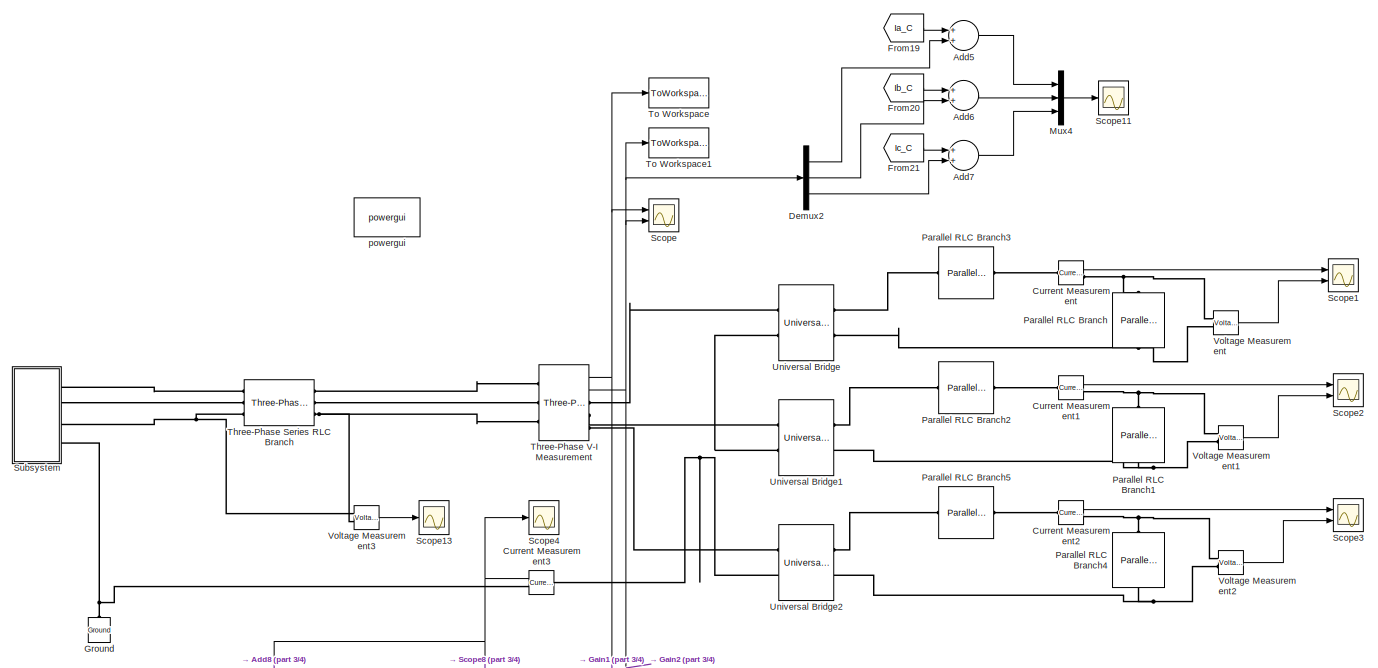
[diagram: root canvas - part 1/4, top left region]
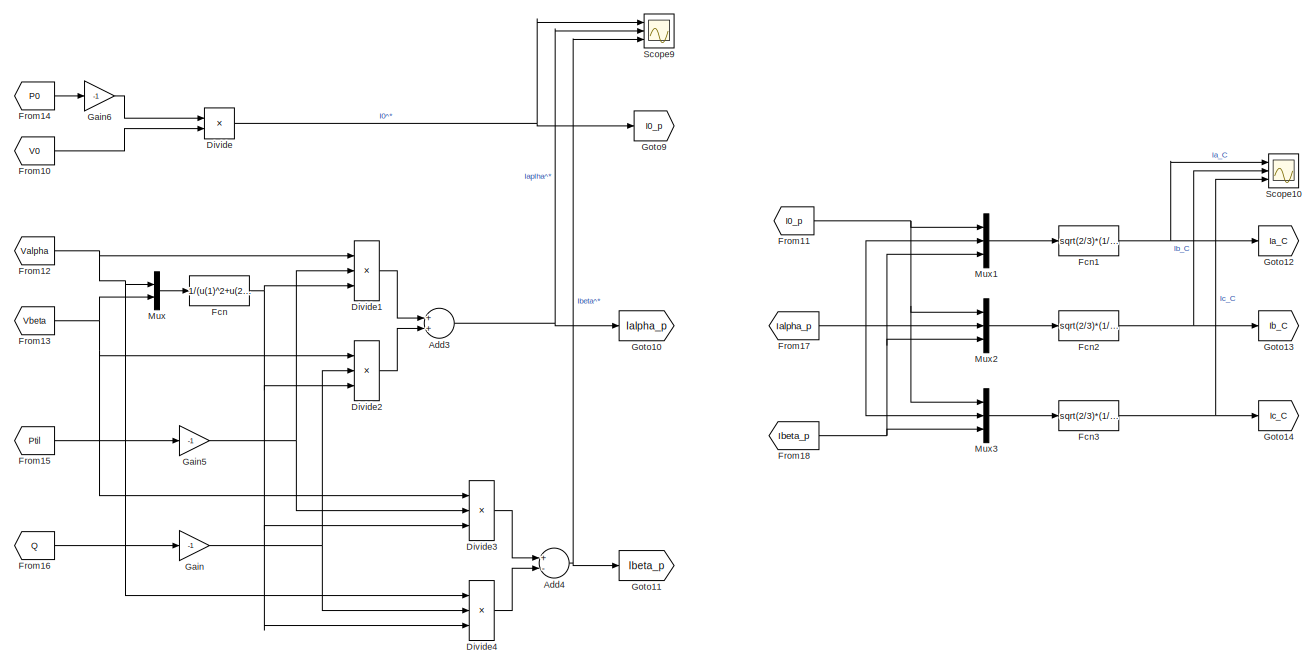
[diagram: root canvas - part 2/4, bottom right region]
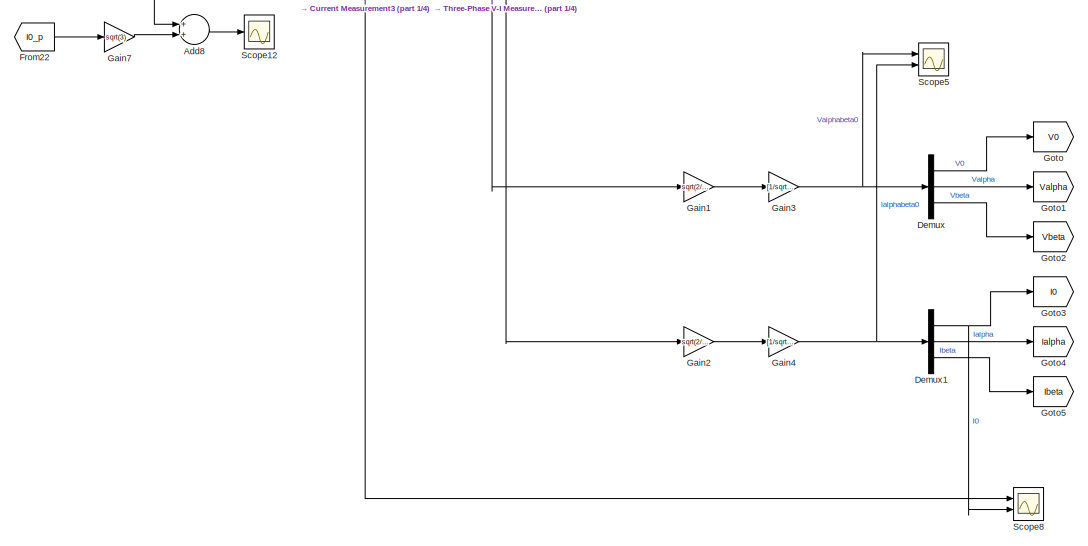
[diagram: root canvas - part 3/4, bottom left region]
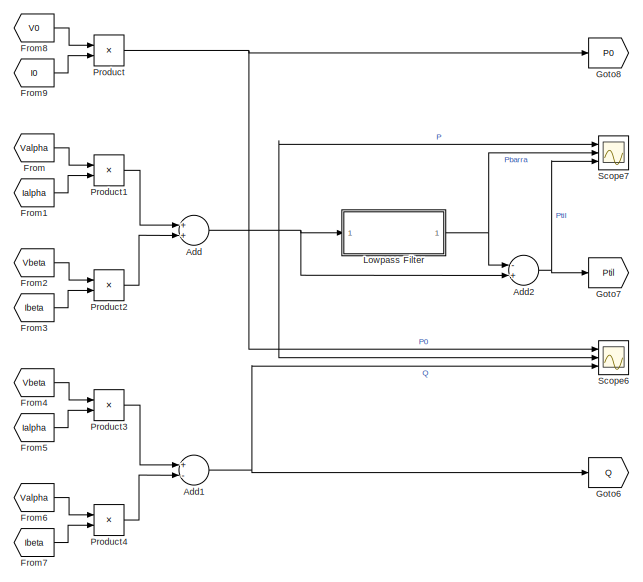
[diagram: root canvas - part 4/4, bottom center region]
MODEL slx_e607e50ff507
KIND model
BLOCK [Sum] Add
  InputSameDT = off
  OutDataTypeStr = Inherit: Inherit via internal rule
  Ports = [2, 1]
  SaturateOnIntegerOverflow = off
BLOCK [Sum] Add1
  InputSameDT = off
  Inputs = +-
  OutDataTypeStr = Inherit: Inherit via internal rule
  Ports = [2, 1]
  SaturateOnIntegerOverflow = off
BLOCK [Sum] Add2
  InputSameDT = off
  Inputs = -+
  OutDataTypeStr = Inherit: Inherit via internal rule
  Ports = [2, 1]
  SaturateOnIntegerOverflow = off
BLOCK [Sum] Add3
  InputSameDT = off
  OutDataTypeStr = Inherit: Inherit via internal rule
  Ports = [2, 1]
  SaturateOnIntegerOverflow = off
BLOCK [Sum] Add4
  InputSameDT = off
  Inputs = +-
  OutDataTypeStr = Inherit: Inherit via internal rule
  Ports = [2, 1]
  SaturateOnIntegerOverflow = off
BLOCK [Sum] Add5
  InputSameDT = off
  OutDataTypeStr = Inherit: Inherit via internal rule
  Ports = [2, 1]
  SaturateOnIntegerOverflow = off
BLOCK [Sum] Add6
  InputSameDT = off
  OutDataTypeStr = Inherit: Inherit via internal rule
  Ports = [2, 1]
  SaturateOnIntegerOverflow = off
BLOCK [Sum] Add7
  InputSameDT = off
  OutDataTypeStr = Inherit: Inherit via internal rule
  Ports = [2, 1]
  SaturateOnIntegerOverflow = off
BLOCK [Sum] Add8
  InputSameDT = off
  OutDataTypeStr = Inherit: Inherit via internal rule
  Ports = [2, 1]
  SaturateOnIntegerOverflow = off
BLOCK [Reference] Current Measurement  REF=powerlib/Measurements/Current Measurement
  OutputType = Complex
  PSBequivalent = 0
  PhasorSimulation = off
  Ports = [0, 1, 0, 0, 0, 1, 1]
  SourceBlock = powerlib/Measurements/Current Measurement
  SourceType = Current Measurement
  UserDataPersistent = on
BLOCK [Reference] Current Measurement1  REF=powerlib/Measurements/Current Measurement
  OutputType = Complex
  PSBequivalent = 0
  PhasorSimulation = off
  Ports = [0, 1, 0, 0, 0, 1, 1]
  SourceBlock = powerlib/Measurements/Current Measurement
  SourceType = Current Measurement
  UserDataPersistent = on
BLOCK [Reference] Current Measurement2  REF=powerlib/Measurements/Current Measurement
  OutputType = Complex
  PSBequivalent = 0
  PhasorSimulation = off
  Ports = [0, 1, 0, 0, 0, 1, 1]
  SourceBlock = powerlib/Measurements/Current Measurement
  SourceType = Current Measurement
  UserDataPersistent = on
BLOCK [Reference] Current Measurement3  REF=powerlib/Measurements/Current Measurement
  OutputType = Complex
  PSBequivalent = 0
  PhasorSimulation = off
  Ports = [0, 1, 0, 0, 0, 1, 1]
  SourceBlock = powerlib/Measurements/Current Measurement
  SourceType = Current Measurement
  UserDataPersistent = on
BLOCK [Demux] Demux
  DisplayOption = bar
  Outputs = 3
  Ports = [1, 3]
BLOCK [Demux] Demux1
  DisplayOption = bar
  Outputs = 3
  Ports = [1, 3]
BLOCK [Demux] Demux2
  DisplayOption = bar
  Outputs = 3
  Ports = [1, 3]
BLOCK [Product] Divide
  InputSameDT = off
  Inputs = */
  OutDataTypeStr = Inherit: Inherit via internal rule
  Ports = [2, 1]
  RndMeth = Floor
  SaturateOnIntegerOverflow = off
BLOCK [Product] Divide1
  InputSameDT = off
  Inputs = ***
  OutDataTypeStr = Inherit: Inherit via internal rule
  Ports = [3, 1]
  RndMeth = Floor
  SaturateOnIntegerOverflow = off
BLOCK [Product] Divide2
  InputSameDT = off
  Inputs = ***
  OutDataTypeStr = Inherit: Inherit via internal rule
  Ports = [3, 1]
  RndMeth = Floor
  SaturateOnIntegerOverflow = off
BLOCK [Product] Divide3
  InputSameDT = off
  Inputs = ***
  OutDataTypeStr = Inherit: Inherit via internal rule
  Ports = [3, 1]
  RndMeth = Floor
  SaturateOnIntegerOverflow = off
BLOCK [Product] Divide4
  InputSameDT = off
  Inputs = ***
  OutDataTypeStr = Inherit: Inherit via internal rule
  Ports = [3, 1]
  RndMeth = Floor
  SaturateOnIntegerOverflow = off
BLOCK [Fcn] Fcn
  Expr = 1/(u(1)^2+u(2)^2)
BLOCK [Fcn] Fcn1
  Expr = sqrt(2/3)*(1/sqrt(2)*u(1)+u(2))
BLOCK [Fcn] Fcn2
  Expr = sqrt(2/3)*(1/sqrt(2)*u(1)-1/2*u(2)+sqrt(3)/2*u(3))
BLOCK [Fcn] Fcn3
  Expr = sqrt(2/3)*(1/sqrt(2)*u(1)-1/2*u(2)-sqrt(3)/2*u(3))
BLOCK [From] From
  GotoTag = Valpha
BLOCK [From] From1
  GotoTag = Ialpha
BLOCK [From] From10
  GotoTag = V0
BLOCK [From] From11
  GotoTag = I0_p
BLOCK [From] From12
  GotoTag = Valpha
BLOCK [From] From13
  GotoTag = Vbeta
BLOCK [From] From14
  GotoTag = P0
BLOCK [From] From15
  GotoTag = Ptil
BLOCK [From] From16
  GotoTag = Q
BLOCK [From] From17
  GotoTag = Ialpha_p
BLOCK [From] From18
  GotoTag = Ibeta_p
BLOCK [From] From19
  GotoTag = Ia_C
BLOCK [From] From2
  GotoTag = Vbeta
BLOCK [From] From20
  GotoTag = Ib_C
BLOCK [From] From21
  GotoTag = Ic_C
BLOCK [From] From22
  GotoTag = I0_p
BLOCK [From] From3
  GotoTag = Ibeta
BLOCK [From] From4
  GotoTag = Vbeta
BLOCK [From] From5
  GotoTag = Ialpha
BLOCK [From] From6
  GotoTag = Valpha
BLOCK [From] From7
  GotoTag = Ibeta
BLOCK [From] From8
  GotoTag = V0
BLOCK [From] From9
  GotoTag = I0
BLOCK [Gain] Gain
  Gain = -1
  OutDataTypeStr = Inherit: Inherit via internal rule
  ParamDataTypeStr = Inherit: Inherit via internal rule
  SaturateOnIntegerOverflow = off
BLOCK [Gain] Gain1
  Gain = sqrt(2/3)
  OutDataTypeStr = Inherit: Inherit via internal rule
  ParamDataTypeStr = Inherit: Inherit via internal rule
  SaturateOnIntegerOverflow = off
BLOCK [Gain] Gain2
  Gain = sqrt(2/3)
  OutDataTypeStr = Inherit: Inherit via internal rule
  ParamDataTypeStr = Inherit: Inherit via internal rule
  SaturateOnIntegerOverflow = off
BLOCK [Gain] Gain3
  Gain = [1/sqrt(2), 1/sqrt(2), 1/sqrt(2); 1, -1/2, -1/2; 0, sqrt(3)/2, -sqrt(3)/2]
  Multiplication = Matrix(K*u)
  OutDataTypeStr = Inherit: Inherit via internal rule
  ParamDataTypeStr = Inherit: Inherit via internal rule
  SaturateOnIntegerOverflow = off
BLOCK [Gain] Gain4
  Gain = [1/sqrt(2), 1/sqrt(2), 1/sqrt(2); 1, -1/2, -1/2; 0, sqrt(3)/2, -sqrt(3)/2]
  Multiplication = Matrix(K*u)
  OutDataTypeStr = Inherit: Inherit via internal rule
  ParamDataTypeStr = Inherit: Inherit via internal rule
  SaturateOnIntegerOverflow = off
BLOCK [Gain] Gain5
  Gain = -1
  OutDataTypeStr = Inherit: Inherit via internal rule
  ParamDataTypeStr = Inherit: Inherit via internal rule
  SaturateOnIntegerOverflow = off
BLOCK [Gain] Gain6
  Gain = -1
  OutDataTypeStr = Inherit: Inherit via internal rule
  ParamDataTypeStr = Inherit: Inherit via internal rule
  SaturateOnIntegerOverflow = off
BLOCK [Gain] Gain7
  Gain = sqrt(3)
  OutDataTypeStr = Inherit: Inherit via internal rule
  ParamDataTypeStr = Inherit: Inherit via internal rule
  SaturateOnIntegerOverflow = off
BLOCK [Goto] Goto
  GotoTag = V0
BLOCK [Goto] Goto1
  GotoTag = Valpha
BLOCK [Goto] Goto10
  GotoTag = Ialpha_p
BLOCK [Goto] Goto11
  GotoTag = Ibeta_p
BLOCK [Goto] Goto12
  GotoTag = Ia_C
BLOCK [Goto] Goto13
  GotoTag = Ib_C
BLOCK [Goto] Goto14
  GotoTag = Ic_C
BLOCK [Goto] Goto2
  GotoTag = Vbeta
BLOCK [Goto] Goto3
  GotoTag = I0
BLOCK [Goto] Goto4
  GotoTag = Ialpha
BLOCK [Goto] Goto5
  GotoTag = Ibeta
BLOCK [Goto] Goto6
  GotoTag = Q
BLOCK [Goto] Goto7
  GotoTag = Ptil
BLOCK [Goto] Goto8
  GotoTag = P0
BLOCK [Goto] Goto9
  GotoTag = I0_p
BLOCK [Reference] Ground  REF=powerlib/Elements/Ground
  LConnTagsString = a
  Ports = [0, 0, 0, 0, 0, 1]
  SourceBlock = powerlib/Elements/Ground
  SourceType = Ground
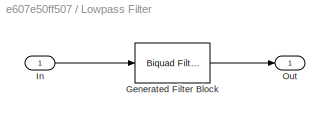
BLOCK [SubSystem] Lowpass Filter
  CopyFcn = fdesignblkfcn(gcbh, {'CopyFcn'});
  DialogController = fdesignblkfcn
  InitFcn = fdesignblkfcn(gcbh, {'InitFcn'});
  Ports = [1, 1]
  RequestExecContextInheritance = off
  UserDataPersistent = on
BLOCK [Reference] Lowpass Filter/Generated Filter Block  REF=dsparch4/Biquad Filter
  BiQuadCoeffs = [1.9581181503870373e-08 3.9162363007740746e-08 1.9581181503870373e-08 1 -1.999872600061211 0.99987271195891581;0.24151271759227033 0.48302543518454066 0.24151271759227033 1 -1.9996926850262837 0.99969272713599988]
  CoeffSource = Specify via dialog
  FilterSource = Specify via dialog
  IC = 0
  ICden = 0
  ICnum = 0
  IIRFiltStruct = Direct form II
  InputProcessing = Columns as channels (frame based)
  LockScale = off
  Ports = [1, 1]
  ScaleValueMode = Specify via input port (g)
  ScaleValues = [6.0159553970087562e-08;1;1]
  SourceBlock = dsparch4/Biquad Filter
  SourceType = Biquad Filter
  Tag = BlockMethodSubSystem
  UserDataPersistent = on
  a0Flag = Warning
  accumFracLength = 30
  accumMode = Same as product output
  accumWordLength = 32
  allowOverrides = on
  denAccumFracLength = 30
  denProdOutputFracLength = 30
  dfiltObjectName = dfilt.df2tsos([1 0.3 0.4],[1 0.1 0.2])
  firstCoeffFracLength = 15
  firstCoeffMode = Same word length as input
  firstCoeffWordLength = 16
  memoryFracLength = 15
  memoryMode = Same as accumulator
  memoryWordLength = 16
  multiplicandFracLength = 30
  multiplicandMode = Same as output
  multiplicandWordLength = 32
  optimizeScaleValues = off
  outputFracLength = 15
  outputMode = Same as accumulator
  outputWordLength = 16
  overflowMode = off
  prodOutputFracLength = 30
  prodOutputMode = Same as input
  prodOutputWordLength = 32
  roundingMode = Floor
  scaleValueFracLength = 14
  secondCoeffFracLength = 15
  secondCoeffMode = Same as numerator
  secondCoeffWordLength = 16
  secondMemoryFracLength = 15
  stageInputFracLength = 15
  stageInputMode = Same as input
  stageInputWordLength = 16
  stageOutputFracLength = 15
  stageOutputMode = Same as section input
  stageOutputWordLength = 16
BLOCK [Inport] Lowpass Filter/In
  IconDisplay = Port number
BLOCK [Outport] Lowpass Filter/Out
  IconDisplay = Port number
BLOCK [Mux] Mux
  DisplayOption = bar
  Inputs = 2
  Ports = [2, 1]
BLOCK [Mux] Mux1
  DisplayOption = bar
  Inputs = 3
  Ports = [3, 1]
BLOCK [Mux] Mux2
  DisplayOption = bar
  Inputs = 3
  Ports = [3, 1]
BLOCK [Mux] Mux3
  DisplayOption = bar
  Inputs = 3
  Ports = [3, 1]
BLOCK [Mux] Mux4
  DisplayOption = bar
  Inputs = 3
  Ports = [3, 1]
BLOCK [Reference] Parallel RLC Branch  REF=powerlib/Elements/Parallel RLC Branch
  AttributesFormatString = \n
  BranchType = RC
  Capacitance = 30e-6
  Inductance = 1e-3
  InitialCurrent = 0
  InitialVoltage = 0
  LConnTagsString = a
  Measurements = None
  Ports = [0, 0, 0, 0, 0, 1, 1]
  RConnTagsString = __new0
  Resistance = 50
  SetiL0 = off
  Setx0 = off
  SourceBlock = powerlib/Elements/Parallel RLC Branch
  SourceType = Parallel RLC Branch
BLOCK [Reference] Parallel RLC Branch1  REF=powerlib/Elements/Parallel RLC Branch
  AttributesFormatString = \n
  BranchType = RC
  Capacitance = 30e-6
  Inductance = 1e-3
  InitialCurrent = 0
  InitialVoltage = 0
  LConnTagsString = a
  Measurements = None
  Ports = [0, 0, 0, 0, 0, 1, 1]
  RConnTagsString = __new0
  Resistance = 5
  SetiL0 = off
  Setx0 = off
  SourceBlock = powerlib/Elements/Parallel RLC Branch
  SourceType = Parallel RLC Branch
BLOCK [Reference] Parallel RLC Branch2  REF=powerlib/Elements/Parallel RLC Branch
  AttributesFormatString = \n
  BranchType = L
  Capacitance = 30e-6
  Inductance = 20e-3
  InitialCurrent = 0
  InitialVoltage = 0
  LConnTagsString = a
  Measurements = None
  Ports = [0, 0, 0, 0, 0, 1, 1]
  RConnTagsString = __new0
  Resistance = 1
  SetiL0 = off
  Setx0 = off
  SourceBlock = powerlib/Elements/Parallel RLC Branch
  SourceType = Parallel RLC Branch
BLOCK [Reference] Parallel RLC Branch3  REF=powerlib/Elements/Parallel RLC Branch
  AttributesFormatString = \n
  BranchType = L
  Capacitance = 30e-6
  Inductance = 10e-3
  InitialCurrent = 0
  InitialVoltage = 0
  LConnTagsString = a
  Measurements = None
  Ports = [0, 0, 0, 0, 0, 1, 1]
  RConnTagsString = __new0
  Resistance = 1
  SetiL0 = off
  Setx0 = off
  SourceBlock = powerlib/Elements/Parallel RLC Branch
  SourceType = Parallel RLC Branch
BLOCK [Reference] Parallel RLC Branch4  REF=powerlib/Elements/Parallel RLC Branch
  AttributesFormatString = \n
  BranchType = RC
  Capacitance = 30e-6
  Inductance = 1e-3
  InitialCurrent = 0
  InitialVoltage = 0
  LConnTagsString = a
  Measurements = None
  Ports = [0, 0, 0, 0, 0, 1, 1]
  RConnTagsString = __new0
  Resistance = 500
  SetiL0 = off
  Setx0 = off
  SourceBlock = powerlib/Elements/Parallel RLC Branch
  SourceType = Parallel RLC Branch
BLOCK [Reference] Parallel RLC Branch5  REF=powerlib/Elements/Parallel RLC Branch
  AttributesFormatString = \n
  BranchType = L
  Capacitance = 30e-6
  Inductance = 20e-3
  InitialCurrent = 0
  InitialVoltage = 0
  LConnTagsString = a
  Measurements = None
  Ports = [0, 0, 0, 0, 0, 1, 1]
  RConnTagsString = __new0
  Resistance = 1
  SetiL0 = off
  Setx0 = off
  SourceBlock = powerlib/Elements/Parallel RLC Branch
  SourceType = Parallel RLC Branch
BLOCK [Product] Product
  InputSameDT = off
  OutDataTypeStr = Inherit: Inherit via internal rule
  Ports = [2, 1]
  RndMeth = Floor
  SaturateOnIntegerOverflow = off
BLOCK [Product] Product1
  InputSameDT = off
  OutDataTypeStr = Inherit: Inherit via internal rule
  Ports = [2, 1]
  RndMeth = Floor
  SaturateOnIntegerOverflow = off
BLOCK [Product] Product2
  InputSameDT = off
  OutDataTypeStr = Inherit: Inherit via internal rule
  Ports = [2, 1]
  RndMeth = Floor
  SaturateOnIntegerOverflow = off
BLOCK [Product] Product3
  InputSameDT = off
  OutDataTypeStr = Inherit: Inherit via internal rule
  Ports = [2, 1]
  RndMeth = Floor
  SaturateOnIntegerOverflow = off
BLOCK [Product] Product4
  InputSameDT = off
  OutDataTypeStr = Inherit: Inherit via internal rule
  Ports = [2, 1]
  RndMeth = Floor
  SaturateOnIntegerOverflow = off
BLOCK [Scope] Scope
  Floating = off
  LimitDataPoints = off
  NumInputPorts = 2
  Ports = [2]
  ShowLegends = off
  YMax = 250~17.5
  YMin = -250~-17.5
  ZoomMode = xonly
BLOCK [Scope] Scope1
  Floating = off
  LimitDataPoints = off
  NumInputPorts = 2
  Ports = [2]
  SaveName = ScopeData1
  ShowLegends = off
  YMax = 20~200
  YMin = -0.00169333~0
  ZoomMode = xonly
BLOCK [Scope] Scope10
  Floating = off
  LimitDataPoints = off
  NumInputPorts = 3
  Ports = [3]
  SaveName = ScopeData10
  ShowLegends = off
  YMax = 400~200~5
  YMin = -600~-200~-5
  ZoomMode = xonly
BLOCK [Scope] Scope11
  Floating = off
  LimitDataPoints = off
  NumInputPorts = 1
  Ports = [1]
  SaveName = ScopeData11
  ShowLegends = off
  YMax = 10
  YMin = -9
  ZoomMode = xonly
BLOCK [Scope] Scope12
  Floating = off
  LimitDataPoints = off
  NumInputPorts = 1
  Ports = [1]
  SaveName = ScopeData12
  ShowLegends = off
  YMax = 7.5
  YMin = -7.5
  ZoomMode = xonly
BLOCK [Scope] Scope13
  Floating = off
  LimitDataPoints = off
  NumInputPorts = 1
  Ports = [1]
  SaveName = ScopeData13
  ShowLegends = off
  YMax = 27.5
  YMin = -25
  ZoomMode = xonly
BLOCK [Scope] Scope2
  Floating = off
  LimitDataPoints = off
  NumInputPorts = 2
  Ports = [2]
  SaveName = ScopeData2
  ShowLegends = off
  YMax = 20~200
  YMin = -0.00169333~0
  ZoomMode = xonly
BLOCK [Scope] Scope3
  Floating = off
  LimitDataPoints = off
  NumInputPorts = 2
  Ports = [2]
  SaveName = ScopeData3
  ShowLegends = off
  YMax = 20~200
  YMin = -0.00169333~0
  ZoomMode = xonly
BLOCK [Scope] Scope4
  Floating = off
  LimitDataPoints = off
  NumInputPorts = 1
  Ports = [1]
  SaveName = ScopeData4
  ShowLegends = off
  YMax = 27.5
  YMin = -25
  ZoomMode = yonly
BLOCK [Scope] Scope5
  Floating = off
  LimitDataPoints = off
  NumInputPorts = 2
  Ports = [2]
  SaveName = ScopeData5
  ShowLegends = off
  YMax = 400~200
  YMin = -600~-200
  ZoomMode = xonly
BLOCK [Scope] Scope6
  Floating = off
  LimitDataPoints = off
  NumInputPorts = 3
  Ports = [3]
  SaveName = ScopeData6
  ShowLegends = off
  YMax = 400~200~5
  YMin = -600~-200~-5
  ZoomMode = yonly
BLOCK [Scope] Scope7
  Floating = off
  LimitDataPoints = off
  NumInputPorts = 3
  Ports = [3]
  SaveName = ScopeData7
  ShowLegends = off
  YMax = 105000~5000~105000
  YMin = 0~0~-5000
  ZoomMode = yonly
BLOCK [Scope] Scope8
  Floating = off
  LimitDataPoints = off
  NumInputPorts = 2
  Ports = [2]
  SaveName = ScopeData8
  ShowLegends = off
  YMax = 400~200
  YMin = -600~-200
  ZoomMode = yonly
BLOCK [Scope] Scope9
  Floating = off
  LimitDataPoints = off
  NumInputPorts = 3
  Ports = [3]
  SaveName = ScopeData9
  ShowLegends = off
  YMax = 8~2e+12~1.75e+15
  YMin = -8~-1e+12~-2.5e+14
  ZoomMode = xonly
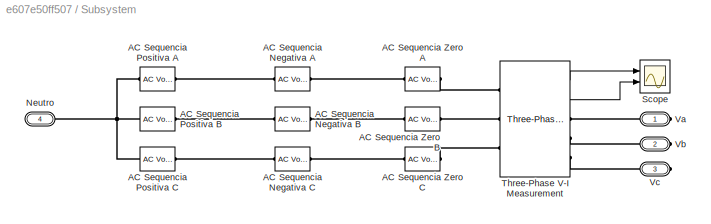
BLOCK [SubSystem] Subsystem
  Ports = [0, 0, 0, 0, 0, 0, 4]
  RequestExecContextInheritance = off
BLOCK [Reference] Subsystem/AC Sequencia Negativa A  REF=powerlib/Electrical
Sources/AC Voltage Source
  Amplitude = Vn
  Frequency = f
  Measurements = None
  Phase = 0+phin
  Ports = [0, 0, 0, 0, 0, 1, 1]
  SampleTime = 0
  SourceBlock = powerlib/Electrical\nSources/AC Voltage Source
  SourceType = AC Voltage Source
BLOCK [Reference] Subsystem/AC Sequencia Negativa B  REF=powerlib/Electrical
Sources/AC Voltage Source
  Amplitude = Vn
  Frequency = f
  Measurements = None
  Phase = 120+phin
  Ports = [0, 0, 0, 0, 0, 1, 1]
  SampleTime = 0
  SourceBlock = powerlib/Electrical\nSources/AC Voltage Source
  SourceType = AC Voltage Source
BLOCK [Reference] Subsystem/AC Sequencia Negativa C  REF=powerlib/Electrical
Sources/AC Voltage Source
  Amplitude = Vn
  Frequency = f
  Measurements = None
  Phase = -120+phin
  Ports = [0, 0, 0, 0, 0, 1, 1]
  SampleTime = 0
  SourceBlock = powerlib/Electrical\nSources/AC Voltage Source
  SourceType = AC Voltage Source
BLOCK [Reference] Subsystem/AC Sequencia Positiva A  REF=powerlib/Electrical
Sources/AC Voltage Source
  Amplitude = Vp
  Frequency = f
  Measurements = None
  Phase = 0
  Ports = [0, 0, 0, 0, 0, 1, 1]
  SampleTime = 0
  SourceBlock = powerlib/Electrical\nSources/AC Voltage Source
  SourceType = AC Voltage Source
BLOCK [Reference] Subsystem/AC Sequencia Positiva B  REF=powerlib/Electrical
Sources/AC Voltage Source
  Amplitude = Vp
  Frequency = f
  Measurements = None
  Phase = -120
  Ports = [0, 0, 0, 0, 0, 1, 1]
  SampleTime = 0
  SourceBlock = powerlib/Electrical\nSources/AC Voltage Source
  SourceType = AC Voltage Source
BLOCK [Reference] Subsystem/AC Sequencia Positiva C  REF=powerlib/Electrical
Sources/AC Voltage Source
  Amplitude = Vp
  Frequency = f
  Measurements = None
  Phase = +120
  Ports = [0, 0, 0, 0, 0, 1, 1]
  SampleTime = 0
  SourceBlock = powerlib/Electrical\nSources/AC Voltage Source
  SourceType = AC Voltage Source
BLOCK [Reference] Subsystem/AC Sequencia Zero A  REF=powerlib/Electrical
Sources/AC Voltage Source
  Amplitude = Vz
  Frequency = f
  Measurements = None
  Phase = 0+phi0
  Ports = [0, 0, 0, 0, 0, 1, 1]
  SampleTime = 0
  SourceBlock = powerlib/Electrical\nSources/AC Voltage Source
  SourceType = AC Voltage Source
BLOCK [Reference] Subsystem/AC Sequencia Zero B  REF=powerlib/Electrical
Sources/AC Voltage Source
  Amplitude = Vz
  Frequency = f
  Measurements = None
  Phase = 0+phi0
  Ports = [0, 0, 0, 0, 0, 1, 1]
  SampleTime = 0
  SourceBlock = powerlib/Electrical\nSources/AC Voltage Source
  SourceType = AC Voltage Source
BLOCK [Reference] Subsystem/AC Sequencia Zero C  REF=powerlib/Electrical
Sources/AC Voltage Source
  Amplitude = Vz
  Frequency = f
  Measurements = None
  Phase = 0+phi0
  Ports = [0, 0, 0, 0, 0, 1, 1]
  SampleTime = 0
  SourceBlock = powerlib/Electrical\nSources/AC Voltage Source
  SourceType = AC Voltage Source
BLOCK [PMIOPort] Subsystem/Neutro
  Port = 4
  Side = Right
BLOCK [Scope] Subsystem/Scope
  Floating = off
  LimitDataPoints = off
  NumInputPorts = 2
  Ports = [2]
  SaveName = ScopeData14
  ShowLegends = off
  YMax = 6~0.8
  YMin = -6~-0.8
  ZoomMode = xonly
BLOCK [Reference] Subsystem/Three-Phase V-I Measurement  REF=powerlib/Measurements/Three-Phase
V-I Measurement
  CurrentMeasurement = yes
  Ipu = off
  LabelI = Iabc
  LabelV = Vabc
  OutputType = Complex
  PSBequivalent = 0
  Pbase = 100e6
  PhasorSimulation = off
  Ports = [0, 2, 0, 0, 0, 3, 3]
  SetLabelI = off
  SetLabelV = off
  SourceBlock = powerlib/Measurements/Three-Phase\nV-I Measurement
  SourceType = Three-Phase VI Measurement
  Vbase = 500e3
  VoltageMeasurement = phase-to-ground
  Vpu = off
  VpuLL = off
BLOCK [PMIOPort] Subsystem/Va
  Port = 1
  Side = Right
BLOCK [PMIOPort] Subsystem/Vb
  Port = 2
  Side = Right
BLOCK [PMIOPort] Subsystem/Vc
  Port = 3
  Side = Right
BLOCK [Reference] Three-Phase Series RLC Branch  REF=powerlib/Elements/Three-Phase
Series RLC Branch
  AttributesFormatString = \n
  BranchType = RL
  Capacitance = 1e-6
  Inductance = eps
  LConnTagsString = A|B|C
  Measurements = None
  Ports = [0, 0, 0, 0, 0, 3, 3]
  RConnTagsString = A|B|C
  Resistance = eps
  SourceBlock = powerlib/Elements/Three-Phase\nSeries RLC Branch
  SourceType = Three-Phase Series RLC Branch
BLOCK [Reference] Three-Phase V-I Measurement  REF=powerlib/Measurements/Three-Phase
V-I Measurement
  CurrentMeasurement = yes
  Ipu = off
  LabelI = Iabc
  LabelV = Vabc
  OutputType = Complex
  PSBequivalent = 0
  Pbase = 100e6
  PhasorSimulation = off
  Ports = [0, 2, 0, 0, 0, 3, 3]
  SetLabelI = off
  SetLabelV = off
  SourceBlock = powerlib/Measurements/Three-Phase\nV-I Measurement
  SourceType = Three-Phase VI Measurement
  Vbase = 500e3
  VoltageMeasurement = phase-to-ground
  Vpu = off
  VpuLL = off
BLOCK [ToWorkspace] To Workspace
  FixptAsFi = on
  MaxDataPoints = inf
  Ports = [1]
  SampleTime = -1
  Save2DSignal = 3-D array (concatenate along third dimension)
  SaveFormat = Structure With Time
  VariableName = Vabc
BLOCK [ToWorkspace] To Workspace1
  FixptAsFi = on
  MaxDataPoints = inf
  Ports = [1]
  SampleTime = -1
  Save2DSignal = 3-D array (concatenate along third dimension)
  SaveFormat = Structure With Time
  VariableName = Iabc
BLOCK [Reference] Universal Bridge  REF=powerlib/Power
Electronics/Universal Bridge
  Arms = 2
  Device = Diodes
  ForwardVoltage = 0
  ForwardVoltages = [  0  0  ]
  GTOparameters = [ 10e-6 , 20e-6 ]
  IGBTparameters = [ 1e-6 , 2e-6 ]
  Lon = 0
  Measurements = None
  Measurements_2 = None
  Ports = [0, 0, 0, 0, 0, 2, 2]
  Ron = 1e-3
  SnubberCapacitance = inf
  SnubberResistance = 1e5
  SourceBlock = powerlib/Power\nElectronics/Universal Bridge
  SourceType = Universal Bridge
  converterType = Rectifier
BLOCK [Reference] Universal Bridge1  REF=powerlib/Power
Electronics/Universal Bridge
  Arms = 2
  Device = Diodes
  ForwardVoltage = 0
  ForwardVoltages = [  0  0  ]
  GTOparameters = [ 10e-6 , 20e-6 ]
  IGBTparameters = [ 1e-6 , 2e-6 ]
  Lon = 0
  Measurements = None
  Measurements_2 = None
  Ports = [0, 0, 0, 0, 0, 2, 2]
  Ron = 1e-3
  SnubberCapacitance = inf
  SnubberResistance = 1e5
  SourceBlock = powerlib/Power\nElectronics/Universal Bridge
  SourceType = Universal Bridge
  converterType = Rectifier
BLOCK [Reference] Universal Bridge2  REF=powerlib/Power
Electronics/Universal Bridge
  Arms = 2
  Device = Diodes
  ForwardVoltage = 0
  ForwardVoltages = [  0  0  ]
  GTOparameters = [ 10e-6 , 20e-6 ]
  IGBTparameters = [ 1e-6 , 2e-6 ]
  Lon = 0
  Measurements = None
  Measurements_2 = None
  Ports = [0, 0, 0, 0, 0, 2, 2]
  Ron = 1e-3
  SnubberCapacitance = inf
  SnubberResistance = 1e5
  SourceBlock = powerlib/Power\nElectronics/Universal Bridge
  SourceType = Universal Bridge
  converterType = Rectifier
BLOCK [Reference] Voltage Measurement  REF=powerlib/Measurements/Voltage Measurement
  OutputType = Complex
  PSBequivalent = 0
  PhasorSimulation = off
  Ports = [0, 1, 0, 0, 0, 2]
  SourceBlock = powerlib/Measurements/Voltage Measurement
  SourceType = Voltage Measurement
  UserDataPersistent = on
BLOCK [Reference] Voltage Measurement1  REF=powerlib/Measurements/Voltage Measurement
  OutputType = Complex
  PSBequivalent = 0
  PhasorSimulation = off
  Ports = [0, 1, 0, 0, 0, 2]
  SourceBlock = powerlib/Measurements/Voltage Measurement
  SourceType = Voltage Measurement
  UserDataPersistent = on
BLOCK [Reference] Voltage Measurement2  REF=powerlib/Measurements/Voltage Measurement
  OutputType = Complex
  PSBequivalent = 0
  PhasorSimulation = off
  Ports = [0, 1, 0, 0, 0, 2]
  SourceBlock = powerlib/Measurements/Voltage Measurement
  SourceType = Voltage Measurement
  UserDataPersistent = on
BLOCK [Reference] Voltage Measurement3  REF=powerlib/Measurements/Voltage Measurement
  OutputType = Complex
  PSBequivalent = 0
  PhasorSimulation = off
  Ports = [0, 1, 0, 0, 0, 2]
  SourceBlock = powerlib/Measurements/Voltage Measurement
  SourceType = Voltage Measurement
  UserDataPersistent = on
BLOCK [Reference] powergui  REF=powerlib/powergui
  DisableRonSwitches = off
  DisableSnubberDevices = off
  DisableVfSwitches = off
  DisplayEquations = off
  DisplayStyle = 1
  EnableUseOfTLC = off
  ErrMax = 1e-4
  Frange = [0:2:500]
  FreqAxis = off
  FunctionMessages = off
  HookPort = off
  Interpol = off
  Iterations = 50
  MaxFrequency = 1000
  Pbase = 100e6
  Ports = []
  Priority = 1
  ResistiveCurrentMeasurement = off
  RestoreLinks = warning
  RmsSteady = 1
  SPID = off
  SampleTime = 5e-7
  ShowGrid = off
  SolverType = Tustin
  SourceBlock = powerlib/powergui
  SourceType = PSB option menu block
  StartTime = 0.0
  SwTol = 0
  Ts = 100
  UnitsV = kV
  UnitsW = MW
  UserDataPersistent = on
  Xlog = on
  Ylog = off
  ZoomFFT = off
  cycles = 1
  display = off
  echomessages = off
  frequency = 60
  frequencyindice = 0
  frequencyindicesteady = 1
  fundamental = 60
  methode = off
  save = off
  structure = 0
  variable = ZData
  x0status = blocks
NET Add1:1 -> Goto6:1, Scope6:3
NET Add2:1 -> Goto7:1, Scope7:3
NET Add3:1 -> Goto10:1, Scope9:2
NET Add4:1 -> Goto11:1, Scope9:3
LINE Add5:1 -> Mux4:1
LINE Add6:1 -> Mux4:2
LINE Add7:1 -> Mux4:3
LINE Add8:1 -> Scope12:1
NET Add:1 -> Add2:2, Lowpass Filter:1, Scope6:2, Scope7:1
LINE Current Measurement1:1 -> Scope2:1
LINE Current Measurement2:1 -> Scope3:1
NET Current Measurement3:1 -> Add8:1, Scope4:1, Scope8:1
LINE Current Measurement:1 -> Scope1:1
NET Demux1:1 -> Goto3:1, Scope8:2
LINE Demux1:2 -> Goto4:1
LINE Demux1:3 -> Goto5:1
LINE Demux2:1 -> Add5:2
LINE Demux2:2 -> Add6:2
LINE Demux2:3 -> Add7:2
LINE Demux:1 -> Goto:1
LINE Demux:2 -> Goto1:1
LINE Demux:3 -> Goto2:1
LINE Divide1:1 -> Add3:1
LINE Divide2:1 -> Add3:2
LINE Divide3:1 -> Add4:1
LINE Divide4:1 -> Add4:2
NET Divide:1 -> Goto9:1, Scope9:1
NET Fcn1:1 -> Goto12:1, Scope10:1
NET Fcn2:1 -> Goto13:1, Scope10:2
NET Fcn3:1 -> Goto14:1, Scope10:3
NET Fcn:1 -> Divide1:3, Divide2:3, Divide3:3, Divide4:3
LINE From10:1 -> Divide:2
NET From11:1 -> Mux1:1, Mux2:1, Mux3:1
NET From12:1 -> Divide1:1, Divide4:1, Mux:1
NET From13:1 -> Divide2:1, Divide3:1, Mux:2
LINE From14:1 -> Gain6:1
LINE From15:1 -> Gain5:1
LINE From16:1 -> Gain:1
NET From17:1 -> Mux1:2, Mux2:2, Mux3:2
NET From18:1 -> Mux1:3, Mux2:3, Mux3:3
LINE From19:1 -> Add5:1
LINE From1:1 -> Product1:2
LINE From20:1 -> Add6:1
LINE From21:1 -> Add7:1
LINE From22:1 -> Gain7:1
LINE From2:1 -> Product2:1
LINE From3:1 -> Product2:2
LINE From4:1 -> Product3:1
LINE From5:1 -> Product3:2
LINE From6:1 -> Product4:1
LINE From7:1 -> Product4:2
LINE From8:1 -> Product:1
LINE From9:1 -> Product:2
LINE From:1 -> Product1:1
LINE Gain1:1 -> Gain3:1
LINE Gain2:1 -> Gain4:1
NET Gain3:1 -> Demux:1, Scope5:1
NET Gain4:1 -> Demux1:1, Scope5:2
NET Gain5:1 -> Divide1:2, Divide3:2
LINE Gain6:1 -> Divide:1
LINE Gain7:1 -> Add8:2
NET Gain:1 -> Divide2:2, Divide4:2
NET Lowpass Filter:1 -> Add2:1, Scope7:2
LINE Mux1:1 -> Fcn1:1
LINE Mux2:1 -> Fcn2:1
LINE Mux3:1 -> Fcn3:1
LINE Mux4:1 -> Scope11:1
LINE Mux:1 -> Fcn:1
LINE Product1:1 -> Add:1
LINE Product2:1 -> Add:2
LINE Product3:1 -> Add1:1
LINE Product4:1 -> Add1:2
NET Product:1 -> Goto8:1, Scope6:1
LINE Subsystem/Three-Phase V-I Measurement:1 -> Subsystem/Scope:1
LINE Subsystem/Three-Phase V-I Measurement:2 -> Subsystem/Scope:2
NET Three-Phase V-I Measurement:1 -> Gain1:1, Scope:1, To Workspace:1
NET Three-Phase V-I Measurement:2 -> Demux2:1, Gain2:1, Scope:2, To Workspace1:1
LINE Voltage Measurement1:1 -> Scope2:2
LINE Voltage Measurement2:1 -> Scope3:2
LINE Voltage Measurement3:1 -> Scope13:1
LINE Voltage Measurement:1 -> Scope1:2
PLINE Current Measurement1:LConn1 -- Parallel RLC Branch2:LConn1
PNET net1: Current Measurement1:RConn1 -- Parallel RLC Branch1:LConn1 -- Voltage Measurement1:LConn1
PLINE Current Measurement2:LConn1 -- Parallel RLC Branch5:LConn1
PNET net2: Current Measurement2:RConn1 -- Parallel RLC Branch4:LConn1 -- Voltage Measurement2:LConn1
PNET net3: Current Measurement3:LConn1 -- Universal Bridge1:LConn2 -- Universal Bridge2:LConn2 -- Universal Bridge:LConn2
PNET net4: Current Measurement3:RConn1 -- Ground:LConn1 -- Subsystem:RConn4
PLINE Current Measurement:LConn1 -- Parallel RLC Branch3:LConn1
PNET net5: Current Measurement:RConn1 -- Parallel RLC Branch:LConn1 -- Voltage Measurement:LConn1
PNET net6: Parallel RLC Branch1:RConn1 -- Universal Bridge1:RConn2 -- Voltage Measurement1:LConn2
PLINE Parallel RLC Branch2:RConn1 -- Universal Bridge1:RConn1
PLINE Parallel RLC Branch3:RConn1 -- Universal Bridge:RConn1
PNET net7: Parallel RLC Branch4:RConn1 -- Universal Bridge2:RConn2 -- Voltage Measurement2:LConn2
PLINE Parallel RLC Branch5:RConn1 -- Universal Bridge2:RConn1
PNET net8: Parallel RLC Branch:RConn1 -- Universal Bridge:RConn2 -- Voltage Measurement:LConn2
PLINE Subsystem/AC Sequencia Negativa A:LConn1 -- Subsystem/AC Sequencia Positiva A:RConn1
PLINE Subsystem/AC Sequencia Negativa A:RConn1 -- Subsystem/AC Sequencia Zero A:LConn1
PLINE Subsystem/AC Sequencia Negativa B:LConn1 -- Subsystem/AC Sequencia Positiva B:RConn1
PLINE Subsystem/AC Sequencia Negativa B:RConn1 -- Subsystem/AC Sequencia Zero B:LConn1
PLINE Subsystem/AC Sequencia Negativa C:LConn1 -- Subsystem/AC Sequencia Positiva C:RConn1
PLINE Subsystem/AC Sequencia Negativa C:RConn1 -- Subsystem/AC Sequencia Zero C:LConn1
PNET net9: Subsystem/AC Sequencia Positiva A:LConn1 -- Subsystem/AC Sequencia Positiva B:LConn1 -- Subsystem/AC Sequencia Positiva C:LConn1 -- Subsystem/Neutro:RConn1
PLINE Subsystem/AC Sequencia Zero A:RConn1 -- Subsystem/Three-Phase V-I Measurement:LConn1
PLINE Subsystem/AC Sequencia Zero B:RConn1 -- Subsystem/Three-Phase V-I Measurement:LConn2
PLINE Subsystem/AC Sequencia Zero C:RConn1 -- Subsystem/Three-Phase V-I Measurement:LConn3
PLINE Subsystem/Three-Phase V-I Measurement:RConn1 -- Subsystem/Va:RConn1
PLINE Subsystem/Three-Phase V-I Measurement:RConn2 -- Subsystem/Vb:RConn1
PLINE Subsystem/Three-Phase V-I Measurement:RConn3 -- Subsystem/Vc:RConn1
PLINE Subsystem:RConn1 -- Three-Phase Series RLC Branch:LConn1
PLINE Subsystem:RConn2 -- Three-Phase Series RLC Branch:LConn2
PNET net10: Subsystem:RConn3 -- Three-Phase Series RLC Branch:LConn3 -- Voltage Measurement3:LConn1
PLINE Three-Phase Series RLC Branch:RConn1 -- Three-Phase V-I Measurement:LConn1
PLINE Three-Phase Series RLC Branch:RConn2 -- Three-Phase V-I Measurement:LConn2
PNET net11: Three-Phase Series RLC Branch:RConn3 -- Three-Phase V-I Measurement:LConn3 -- Voltage Measurement3:LConn2
PLINE Three-Phase V-I Measurement:RConn1 -- Universal Bridge:LConn1
PLINE Three-Phase V-I Measurement:RConn2 -- Universal Bridge1:LConn1
PLINE Three-Phase V-I Measurement:RConn3 -- Universal Bridge2:LConn1
note: NET lines group one-source signal fan-out (src -> all destinations, sorted); 1:1 wires keep LINE; PNET lines group multi-terminal physical nets as a canonical sorted terminal list (undirected conserving connections); 2-terminal nets keep the pairwise PLINE form
